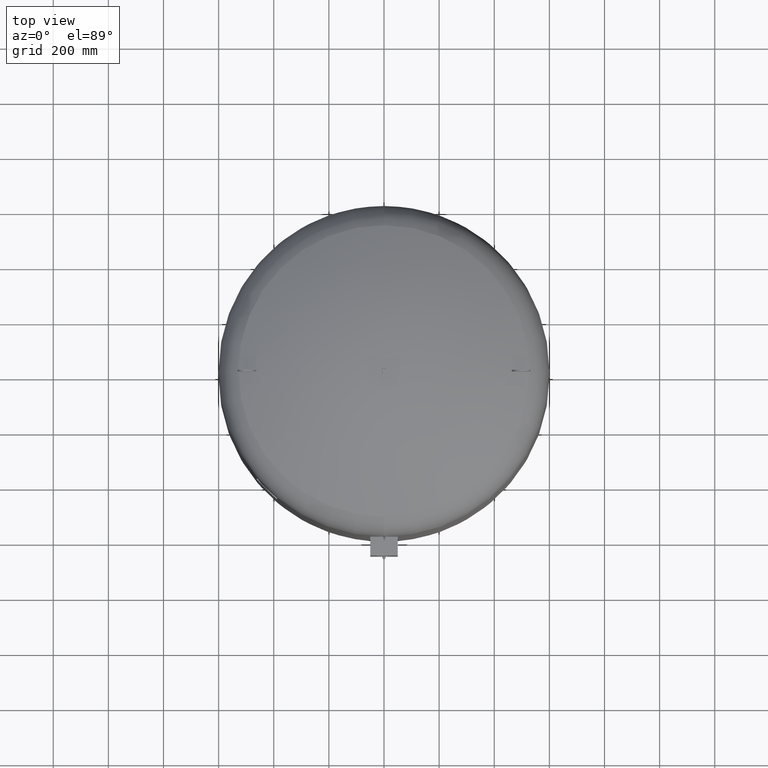
[diagram: clean part render]
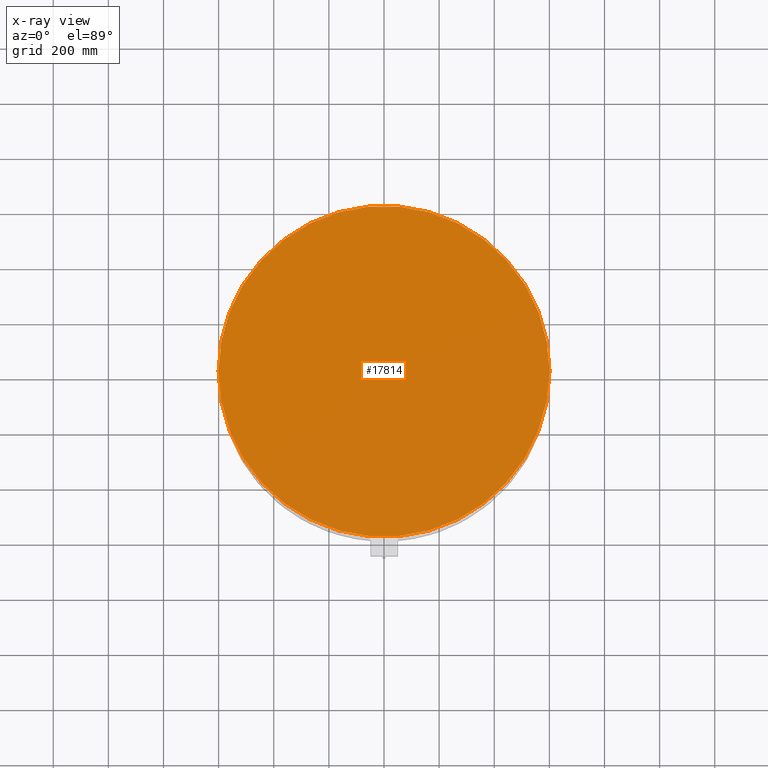
[diagram: x-ray — body ghosted, one internal face saturated and labeled with its STEP entity id]
A machine part, top view, then the same camera in x-ray: the body is ghosted and one INTERNAL B-rep face — a face not visible from any outside direction — is saturated and labeled: STEP entity #17814.
In plain terms, the highlighted planar face has unit normal (0, 0, -1).
Its self-contained STEP definition (entity closure, byte-faithful):
#17145=CARTESIAN_POINT('',(600.000000000000110,-4.684274E-014,1714.0));
#17146=VERTEX_POINT('',#17145);
#17155=CARTESIAN_POINT('',(-599.999999999999890,2.663364E-014,1714.0));
#17156=VERTEX_POINT('',#17155);
#17157=CARTESIAN_POINT('',(7.134050E-015,-4.684274E-014,1714.0));
#17158=DIRECTION('',(0.0,0.0,-1.0));
#17159=DIRECTION('',(1.0,0.0,0.0));
#17160=AXIS2_PLACEMENT_3D('',#17157,#17158,#17159);
#17161=CIRCLE('',#17160,600.0);
#17162=EDGE_CURVE('',#17156,#17146,#17161,.T.);
#17795=CARTESIAN_POINT('',(7.134050E-015,-4.684274E-014,1714.0));
#17796=DIRECTION('',(0.0,0.0,-1.0));
#17797=DIRECTION('',(1.0,0.0,0.0));
#17798=AXIS2_PLACEMENT_3D('',#17795,#17796,#17797);
#17799=CIRCLE('',#17798,600.0);
#17800=EDGE_CURVE('',#17146,#17156,#17799,.T.);
#17805=CARTESIAN_POINT('',(300.0,-4.684274E-014,1714.0));
#17806=DIRECTION('',(0.0,0.0,-1.0));
#17807=DIRECTION('',(0.0,-1.0,0.0));
#17808=AXIS2_PLACEMENT_3D('',#17805,#17806,#17807);
#17809=PLANE('',#17808);
#17810=ORIENTED_EDGE('',*,*,#17800,.T.);
#17811=ORIENTED_EDGE('',*,*,#17162,.T.);
#17812=EDGE_LOOP('',(#17810,#17811));
#17813=FACE_OUTER_BOUND('',#17812,.T.);
#17814=ADVANCED_FACE('',(#17813),#17809,.T.);